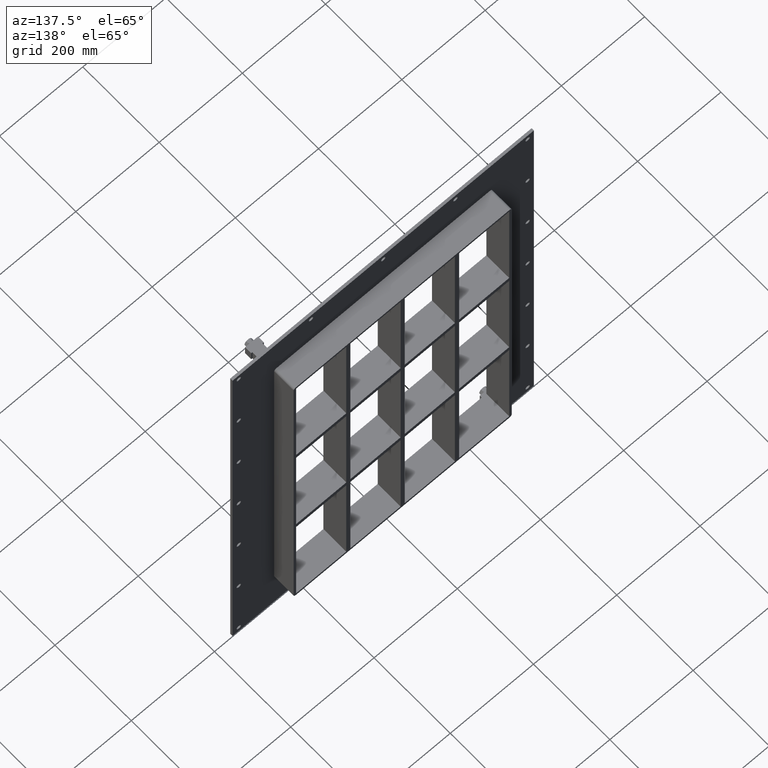
[diagram: clean part render]
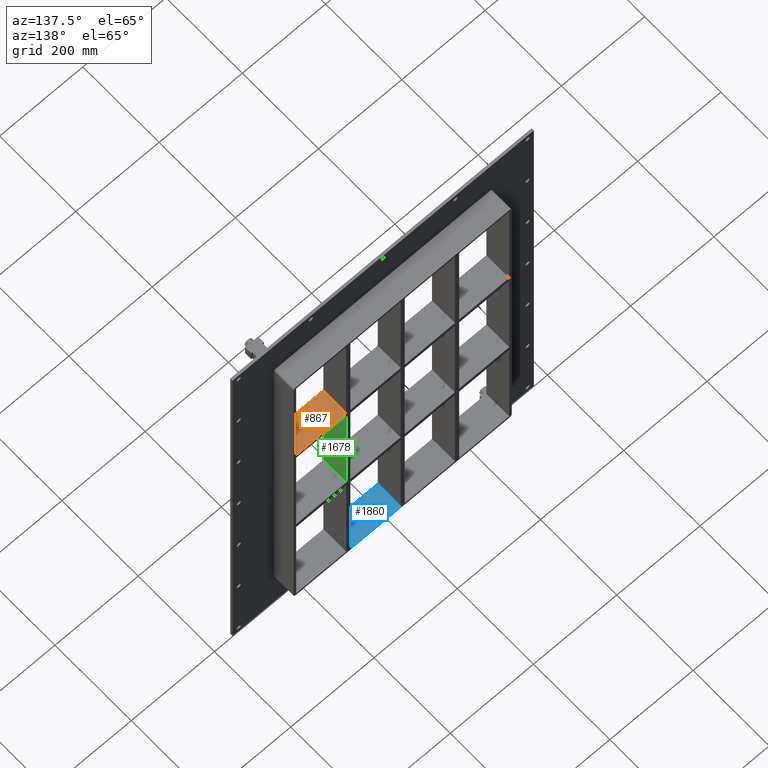
[diagram: same view with three faces highlighted in distinct colors, each labeled with its STEP entity id]
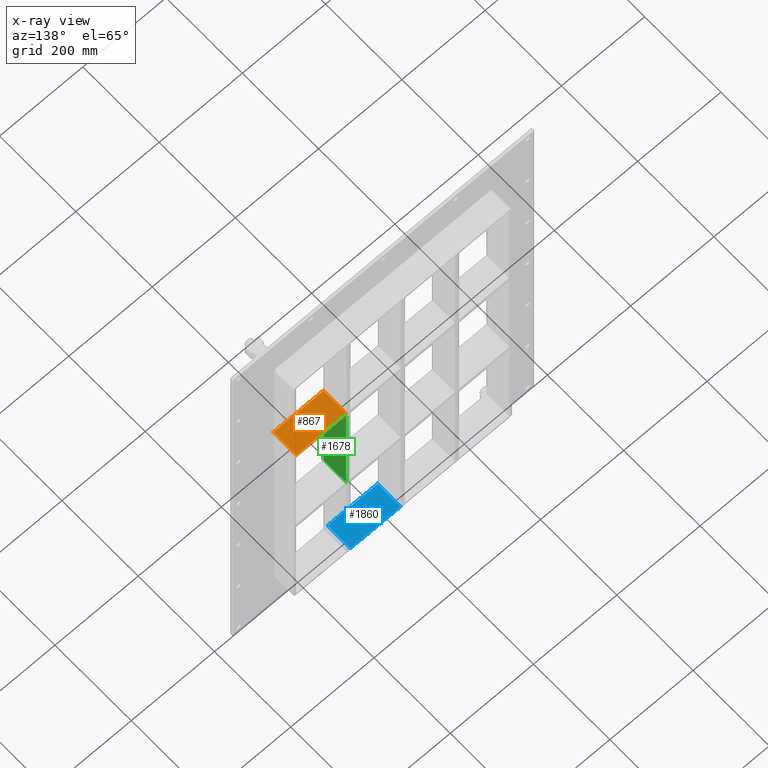
[diagram: x-ray of the same camera — body ghosted, the three highlighted faces saturated]
A machine part, auxiliary view with three faces highlighted in distinct colors.
The next image is the same camera in x-ray (body ghosted, the three faces saturated) — at least one of them is partly hidden behind the body in this view.
Their STEP definitions:

[orange] entity #867 — the highlighted planar face has unit normal (0, 0, 1).
#828=CARTESIAN_POINT('',(-255.99999999999741,-3.0,150.99999999999909));
#829=DIRECTION('',(0.0,0.0,1.0));
#830=DIRECTION('',(1.0,0.0,0.0));
#831=AXIS2_PLACEMENT_3D('',#828,#829,#830);
#832=PLANE('',#831);
#833=CARTESIAN_POINT('',(135.50000000000733,-3.0,150.99999999999909));
#834=VERTEX_POINT('',#833);
#835=CARTESIAN_POINT('',(135.50000000000733,57.0,150.99999999999909));
#836=VERTEX_POINT('',#835);
#837=CARTESIAN_POINT('',(135.5000000000073,-3.0,150.99999999999909));
#838=DIRECTION('',(0.0,1.0,0.0));
#839=VECTOR('',#838,60.0);
#840=LINE('',#837,#839);
#841=EDGE_CURVE('',#834,#836,#840,.T.);
#842=ORIENTED_EDGE('',*,*,#841,.F.);
#843=CARTESIAN_POINT('',(255.9999999999992,-3.0,150.99999999999909));
#844=VERTEX_POINT('',#843);
#845=CARTESIAN_POINT('',(135.50000000000736,-3.0,150.99999999999909));
#846=DIRECTION('',(1.0,0.0,0.0));
#847=VECTOR('',#846,120.49999999999181);
#848=LINE('',#845,#847);
#849=EDGE_CURVE('',#834,#844,#848,.T.);
#850=ORIENTED_EDGE('',*,*,#849,.T.);
#851=CARTESIAN_POINT('',(255.9999999999992,57.0,150.99999999999909));
#852=VERTEX_POINT('',#851);
#853=CARTESIAN_POINT('',(256.00000000000006,57.000000000000007,150.99999999999909));
#854=DIRECTION('',(0.0,-1.0,0.0));
#855=VECTOR('',#854,60.000000000000007);
#856=LINE('',#853,#855);
#857=EDGE_CURVE('',#852,#844,#856,.T.);
#858=ORIENTED_EDGE('',*,*,#857,.F.);
#859=CARTESIAN_POINT('',(135.50000000000736,57.0,150.99999999999909));
#860=DIRECTION('',(1.0,0.0,0.0));
#861=VECTOR('',#860,120.49999999999181);
#862=LINE('',#859,#861);
#863=EDGE_CURVE('',#836,#852,#862,.T.);
#864=ORIENTED_EDGE('',*,*,#863,.F.);
#865=EDGE_LOOP('',(#842,#850,#858,#864));
#866=FACE_OUTER_BOUND('',#865,.T.);
#867=ADVANCED_FACE('',(#866),#832,.T.);

[blue] entity #1860 — the highlighted planar face has unit normal (0, 0, -1).
#1520=CARTESIAN_POINT('',(125.50000000000108,57.0,-429.00000000000011));
#1521=VERTEX_POINT('',#1520);
#1538=CARTESIAN_POINT('',(5.000000000007283,57.0,-428.99999999998192));
#1539=VERTEX_POINT('',#1538);
#1546=CARTESIAN_POINT('',(5.000000000007276,57.0,-429.00000000000011));
#1547=DIRECTION('',(1.0,0.0,0.0));
#1548=VECTOR('',#1547,120.49999999999379);
#1549=LINE('',#1546,#1548);
#1550=EDGE_CURVE('',#1539,#1521,#1549,.T.);
#1638=CARTESIAN_POINT('',(125.50000000000108,-3.0,-429.00000000000011));
#1639=VERTEX_POINT('',#1638);
#1640=CARTESIAN_POINT('',(125.50000000000108,-3.0,-429.00000000000011));
#1641=DIRECTION('',(0.0,1.0,0.0));
#1642=VECTOR('',#1641,60.000000000000007);
#1643=LINE('',#1640,#1642);
#1644=EDGE_CURVE('',#1639,#1521,#1643,.T.);
#1802=CARTESIAN_POINT('',(5.000000000007283,-3.0,-428.99999999998187));
#1803=VERTEX_POINT('',#1802);
#1810=CARTESIAN_POINT('',(5.000000000007283,57.000000000000007,-429.00000000000011));
#1811=DIRECTION('',(0.0,-1.0,0.0));
#1812=VECTOR('',#1811,60.000000000000007);
#1813=LINE('',#1810,#1812);
#1814=EDGE_CURVE('',#1539,#1803,#1813,.T.);
#1844=CARTESIAN_POINT('',(256.00000000000006,0.0,-429.00000000000011));
#1845=DIRECTION('',(0.0,0.0,-1.0));
#1846=DIRECTION('',(-1.0,0.0,0.0));
#1847=AXIS2_PLACEMENT_3D('',#1844,#1845,#1846);
#1848=PLANE('',#1847);
#1849=ORIENTED_EDGE('',*,*,#1644,.T.);
#1850=ORIENTED_EDGE('',*,*,#1550,.F.);
#1851=ORIENTED_EDGE('',*,*,#1814,.T.);
#1852=CARTESIAN_POINT('',(125.50000000000107,-3.0,-429.00000000000011));
#1853=DIRECTION('',(-1.0,0.0,0.0));
#1854=VECTOR('',#1853,120.49999999999379);
#1855=LINE('',#1852,#1854);
#1856=EDGE_CURVE('',#1639,#1803,#1855,.T.);
#1857=ORIENTED_EDGE('',*,*,#1856,.F.);
#1858=EDGE_LOOP('',(#1849,#1850,#1851,#1857));
#1859=FACE_OUTER_BOUND('',#1858,.T.);
#1860=ADVANCED_FACE('',(#1859),#1848,.F.);

[green] entity #1678 — the highlighted planar face has unit normal (1, 0, 0).
#713=CARTESIAN_POINT('',(135.50000000000728,57.0,138.99999999998917));
#714=VERTEX_POINT('',#713);
#715=CARTESIAN_POINT('',(135.50000000000728,-3.0,138.99999999998917));
#716=VERTEX_POINT('',#715);
#717=CARTESIAN_POINT('',(135.50000000000728,57.0,138.99999999998914));
#718=DIRECTION('',(0.0,-1.0,0.0));
#719=VECTOR('',#718,60.0);
#720=LINE('',#717,#719);
#721=EDGE_CURVE('',#714,#716,#720,.T.);
#1385=CARTESIAN_POINT('',(135.50000000000728,57.0,-139.00000000000091));
#1386=VERTEX_POINT('',#1385);
#1387=CARTESIAN_POINT('',(135.50000000000728,57.0,138.9999999999892));
#1388=DIRECTION('',(0.0,0.0,-1.0));
#1389=VECTOR('',#1388,277.99999999999011);
#1390=LINE('',#1387,#1389);
#1391=EDGE_CURVE('',#714,#1386,#1390,.T.);
#1655=CARTESIAN_POINT('',(135.50000000000728,-3.0,429.0));
#1656=DIRECTION('',(1.0,0.0,0.0));
#1657=DIRECTION('',(0.0,0.0,-1.0));
#1658=AXIS2_PLACEMENT_3D('',#1655,#1656,#1657);
#1659=PLANE('',#1658);
#1660=ORIENTED_EDGE('',*,*,#721,.T.);
#1661=CARTESIAN_POINT('',(135.50000000000728,-3.0,-139.00000000000091));
#1662=VERTEX_POINT('',#1661);
#1663=CARTESIAN_POINT('',(135.50000000000728,-3.0,138.9999999999892));
#1664=DIRECTION('',(0.0,0.0,-1.0));
#1665=VECTOR('',#1664,277.99999999999011);
#1666=LINE('',#1663,#1665);
#1667=EDGE_CURVE('',#716,#1662,#1666,.T.);
#1668=ORIENTED_EDGE('',*,*,#1667,.T.);
#1669=CARTESIAN_POINT('',(135.5000000000073,57.0,-139.00000000000091));
#1670=DIRECTION('',(0.0,-1.0,0.0));
#1671=VECTOR('',#1670,60.0);
#1672=LINE('',#1669,#1671);
#1673=EDGE_CURVE('',#1386,#1662,#1672,.T.);
#1674=ORIENTED_EDGE('',*,*,#1673,.F.);
#1675=ORIENTED_EDGE('',*,*,#1391,.F.);
#1676=EDGE_LOOP('',(#1660,#1668,#1674,#1675));
#1677=FACE_OUTER_BOUND('',#1676,.T.);
#1678=ADVANCED_FACE('',(#1677),#1659,.T.);